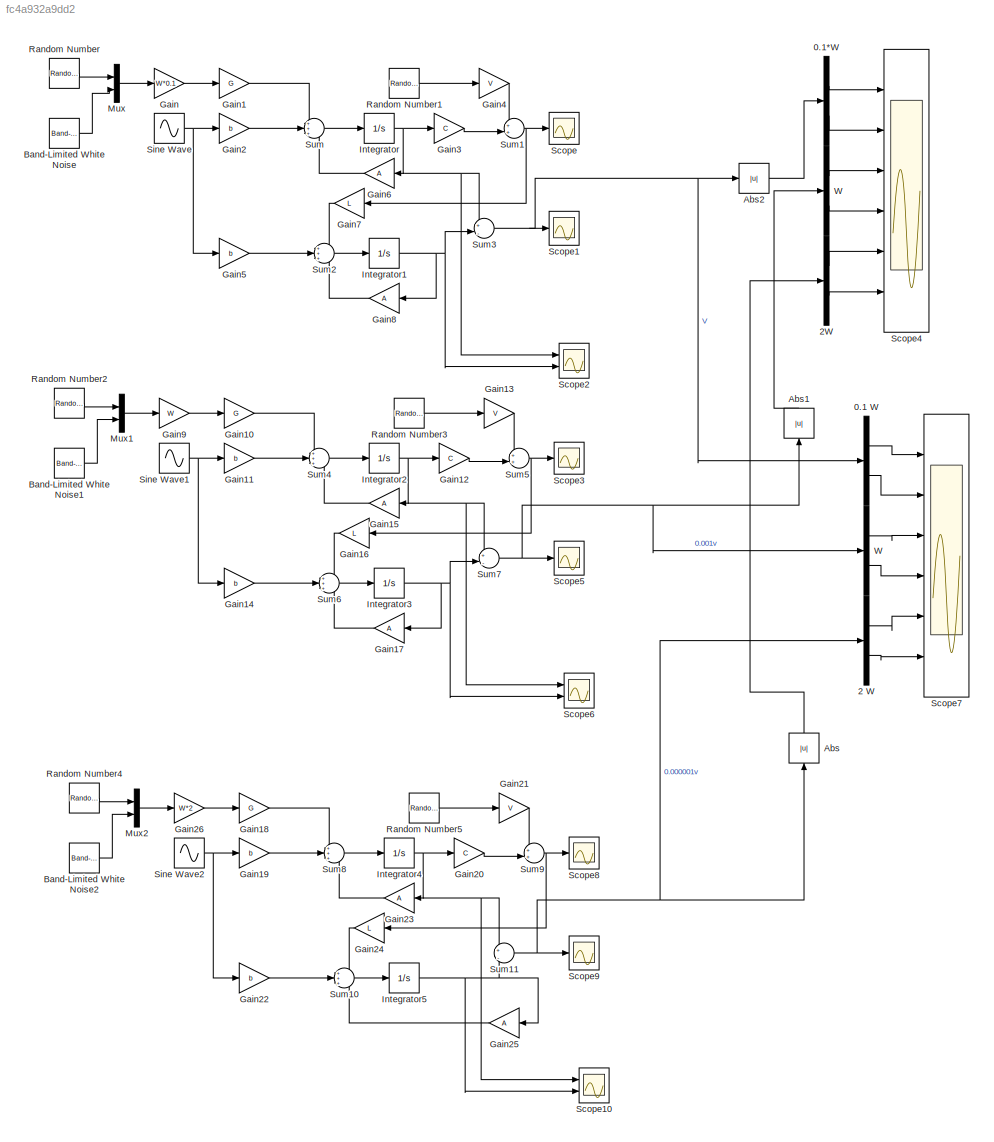
MODEL slx_fc4a932a9dd2
KIND model
CONFIG AbsTol = auto
CONFIG EnableMultiTasking = off
CONFIG FixedStep = auto
CONFIG MaxStep = auto
CONFIG MinStep = auto
CONFIG RelTol = 1e-3
CONFIG SampleTimeConstraint = Unconstrained
CONFIG SolverName = VariableStepAuto
CONFIG StartTime = 0.0
CONFIG StopTime = 10
BLOCK [Demux] 	0.1 W
  Outputs = 2
  Ports = [1, 2]
BLOCK [Demux] 	0.1*W
  Outputs = 2
  Ports = [1, 2]
BLOCK [Demux] 2 W
  NameLocation = right
  Outputs = 2
  Ports = [1, 2]
BLOCK [Demux] 2W
  Outputs = 2
  Ports = [1, 2]
BLOCK [Abs] Abs
  NameLocation = right
  SaturateOnIntegerOverflow = off
BLOCK [Abs] Abs1
  NameLocation = right
  SaturateOnIntegerOverflow = off
BLOCK [Abs] Abs2
  SaturateOnIntegerOverflow = off
BLOCK [Reference] Band-Limited White Noise  REF=simulink/Sources/Band-Limited
White Noise
  Ports = [0, 1]
  SourceBlock = simulink/Sources/Band-Limited\nWhite Noise
  SourceProductBaseCode = SL
  SourceType = Band-Limited White Noise.
BLOCK [Reference] Band-Limited White Noise1  REF=simulink/Sources/Band-Limited
White Noise
  Ports = [0, 1]
  SourceBlock = simulink/Sources/Band-Limited\nWhite Noise
  SourceProductBaseCode = SL
  SourceType = Band-Limited White Noise.
BLOCK [Reference] Band-Limited White Noise2  REF=simulink/Sources/Band-Limited
White Noise
  Ports = [0, 1]
  SourceBlock = simulink/Sources/Band-Limited\nWhite Noise
  SourceProductBaseCode = SL
  SourceType = Band-Limited White Noise.
BLOCK [Gain] Gain
  Gain = W*0.1
  Multiplication = Matrix(K*u)
BLOCK [Gain] Gain1
  Gain = G
  Multiplication = Matrix(K*u)
BLOCK [Gain] Gain10
  Gain = G
  Multiplication = Matrix(K*u)
BLOCK [Gain] Gain11
  Gain = b
  Multiplication = Matrix(K*u)
BLOCK [Gain] Gain12
  Gain = C
  Multiplication = Matrix(K*u)
BLOCK [Gain] Gain13
  Gain = V
  Multiplication = Matrix(K*u)
BLOCK [Gain] Gain14
  Gain = b
  Multiplication = Matrix(K*u)
BLOCK [Gain] Gain15
  Gain = A
  Multiplication = Matrix(K*u)
  NameLocation = top
BLOCK [Gain] Gain16
  Gain = L
  Multiplication = Matrix(K*u)
  NameLocation = top
BLOCK [Gain] Gain17
  Gain = A
  Multiplication = Matrix(K*u)
  NameLocation = top
BLOCK [Gain] Gain18
  Gain = G
  Multiplication = Matrix(K*u)
BLOCK [Gain] Gain19
  Gain = b
  Multiplication = Matrix(K*u)
BLOCK [Gain] Gain2
  Gain = b
  Multiplication = Matrix(K*u)
BLOCK [Gain] Gain20
  Gain = C
  Multiplication = Matrix(K*u)
BLOCK [Gain] Gain21
  Gain = V
  Multiplication = Matrix(K*u)
BLOCK [Gain] Gain22
  Gain = b
  Multiplication = Matrix(K*u)
BLOCK [Gain] Gain23
  Gain = A
  Multiplication = Matrix(K*u)
  NameLocation = top
BLOCK [Gain] Gain24
  Gain = L
  Multiplication = Matrix(K*u)
  NameLocation = top
BLOCK [Gain] Gain25
  Gain = A
  Multiplication = Matrix(K*u)
  NameLocation = top
BLOCK [Gain] Gain26
  Gain = W*2
  Multiplication = Matrix(K*u)
BLOCK [Gain] Gain3
  Gain = C
  Multiplication = Matrix(K*u)
BLOCK [Gain] Gain4
  Gain = V
  Multiplication = Matrix(K*u)
BLOCK [Gain] Gain5
  Gain = b
  Multiplication = Matrix(K*u)
BLOCK [Gain] Gain6
  Gain = A
  Multiplication = Matrix(K*u)
  NameLocation = top
BLOCK [Gain] Gain7
  Gain = L
  Multiplication = Matrix(K*u)
  NameLocation = top
BLOCK [Gain] Gain8
  Gain = A
  Multiplication = Matrix(K*u)
  NameLocation = top
BLOCK [Gain] Gain9
  Gain = W
  Multiplication = Matrix(K*u)
BLOCK [Integrator] Integrator
  InitialCondition = [1;0]
  Ports = [1, 1]
BLOCK [Integrator] Integrator1
  InitialCondition = [0;0]
  Ports = [1, 1]
BLOCK [Integrator] Integrator2
  InitialCondition = [1;0]
  Ports = [1, 1]
BLOCK [Integrator] Integrator3
  InitialCondition = [0;0]
  Ports = [1, 1]
BLOCK [Integrator] Integrator4
  InitialCondition = [1;0]
  Ports = [1, 1]
BLOCK [Integrator] Integrator5
  InitialCondition = [0;0]
  Ports = [1, 1]
BLOCK [Mux] Mux
  DisplayOption = bar
  Inputs = 2
  Ports = [2, 1]
BLOCK [Mux] Mux1
  DisplayOption = bar
  Inputs = 2
  Ports = [2, 1]
BLOCK [Mux] Mux2
  DisplayOption = bar
  Inputs = 2
  Ports = [2, 1]
BLOCK [RandomNumber] Random Number
  SampleTime = 0.1
BLOCK [RandomNumber] Random Number1
  SampleTime = 0.1
BLOCK [RandomNumber] Random Number2
  SampleTime = 0.1
BLOCK [RandomNumber] Random Number3
  SampleTime = 0.1
BLOCK [RandomNumber] Random Number4
  SampleTime = 0.1
BLOCK [RandomNumber] Random Number5
  SampleTime = 0.1
BLOCK [Scope] Scope
  Floating = off
  NumInputPorts = 1
  Ports = [1]
  ScopeSpecificationString = Simulink.scopes.TimeScopeBlockCfg('CurrentConfiguration', extmgr.ConfigurationSet(extmgr.Configuration('Core','General UI',true),extmgr.Configuration('Core','Source UI',true),extmgr.Configuration('Sources','WiredSimulink',true),extmgr.Configuration('Visuals','Time Domain',true,'SerializedDisplays',{struct('MinYLimReal','-3.75698','MaxYLimReal','3.24648','YLabelReal','','MinYLimMag','0.00000','MaxY...<+1324ch>
BLOCK [Scope] Scope1
  Floating = off
  NumInputPorts = 1
  Ports = [1]
  ScopeSpecificationString = Simulink.scopes.TimeScopeBlockCfg('CurrentConfiguration', extmgr.ConfigurationSet(extmgr.Configuration('Core','General UI',true,'FigureColor',[1 1 1]),extmgr.Configuration('Core','Source UI',true),extmgr.Configuration('Sources','WiredSimulink',true,'DataLoggingVariableName','ScopeData1'),extmgr.Configuration('Visuals','Time Domain',true,'SerializedDisplays',{struct('MinYLimReal','-4.37644','MaxYLi...<+1590ch>
BLOCK [Scope] Scope10
  Floating = off
  NumInputPorts = 2
  Ports = [2]
  ScopeSpecificationString = Simulink.scopes.TimeScopeBlockCfg('CurrentConfiguration', extmgr.ConfigurationSet(extmgr.Configuration('Core','General UI',true,'FigureColor',[1 1 1]),extmgr.Configuration('Core','Source UI',true),extmgr.Configuration('Sources','WiredSimulink',true,'DataLoggingVariableName','ScopeData6'),extmgr.Configuration('Visuals','Time Domain',true,'SerializedDisplays',{struct('MinYLimReal','-35.42371','MaxYL...<+1723ch>
BLOCK [Scope] Scope2
  Floating = off
  NumInputPorts = 2
  Ports = [2]
  ScopeSpecificationString = Simulink.scopes.TimeScopeBlockCfg('CurrentConfiguration', extmgr.ConfigurationSet(extmgr.Configuration('Core','General UI',true,'FigureColor',[1 1 1]),extmgr.Configuration('Core','Source UI',true),extmgr.Configuration('Sources','WiredSimulink',true,'DataLoggingVariableName','ScopeData1'),extmgr.Configuration('Visuals','Time Domain',true,'SerializedDisplays',{struct('MinYLimReal','-5.13299','MaxYLi...<+1717ch>
BLOCK [Scope] Scope3
  Floating = off
  NumInputPorts = 1
  Ports = [1]
  ScopeSpecificationString = Simulink.scopes.TimeScopeBlockCfg('CurrentConfiguration', extmgr.ConfigurationSet(extmgr.Configuration('Core','General UI',true),extmgr.Configuration('Core','Source UI',true),extmgr.Configuration('Sources','WiredSimulink',true,'DataLoggingVariableName','ScopeData2'),extmgr.Configuration('Visuals','Time Domain',true,'SerializedDisplays',{struct('MinYLimReal','-11.13726','MaxYLimReal','10.60556','YL...<+1369ch>
BLOCK [Scope] Scope4
  Floating = off
  NumInputPorts = 6
  Ports = [6]
  ScopeSpecificationString = Simulink.scopes.TimeScopeBlockCfg('CurrentConfiguration', extmgr.ConfigurationSet(extmgr.Configuration('Core','General UI',true,'FigureColor',[1 1 1]),extmgr.Configuration('Core','Source UI',true),extmgr.Configuration('Sources','WiredSimulink',true,'DataLoggingVariableName','ScopeData3'),extmgr.Configuration('Visuals','Time Domain',true,'SerializedDisplays',{struct('MinYLimReal','-5.01544','MaxYLi...<+2389ch>
BLOCK [Scope] Scope5
  Floating = off
  NumInputPorts = 1
  Ports = [1]
  ScopeSpecificationString = Simulink.scopes.TimeScopeBlockCfg('CurrentConfiguration', extmgr.ConfigurationSet(extmgr.Configuration('Core','General UI',true,'FigureColor',[1 1 1]),extmgr.Configuration('Core','Source UI',true),extmgr.Configuration('Sources','WiredSimulink',true,'DataLoggingVariableName','ScopeData4'),extmgr.Configuration('Visuals','Time Domain',true,'SerializedDisplays',{struct('MinYLimReal','-31.06163','MaxYL...<+1596ch>
BLOCK [Scope] Scope6
  Floating = off
  NumInputPorts = 2
  Ports = [2]
  ScopeSpecificationString = Simulink.scopes.TimeScopeBlockCfg('CurrentConfiguration', extmgr.ConfigurationSet(extmgr.Configuration('Core','General UI',true,'FigureColor',[1 1 1]),extmgr.Configuration('Core','Source UI',true),extmgr.Configuration('Sources','WiredSimulink',true,'DataLoggingVariableName','ScopeData5'),extmgr.Configuration('Visuals','Time Domain',true,'SerializedDisplays',{struct('MinYLimReal','-35.42371','MaxYL...<+1723ch>
BLOCK [Scope] Scope7
  Floating = off
  NumInputPorts = 6
  Ports = [6]
  ScopeSpecificationString = Simulink.scopes.TimeScopeBlockCfg('CurrentConfiguration', extmgr.ConfigurationSet(extmgr.Configuration('Core','General UI',true,'FigureColor',[1 1 1]),extmgr.Configuration('Core','Source UI',true),extmgr.Configuration('Sources','WiredSimulink',true,'DataLoggingVariableName','ScopeData7'),extmgr.Configuration('Visuals','Time Domain',true,'SerializedDisplays',{struct('MinYLimReal','-41.73829','MaxYL...<+2408ch>
BLOCK [Scope] Scope8
  Floating = off
  NumInputPorts = 1
  Ports = [1]
  ScopeSpecificationString = Simulink.scopes.TimeScopeBlockCfg('CurrentConfiguration', extmgr.ConfigurationSet(extmgr.Configuration('Core','General UI',true),extmgr.Configuration('Core','Source UI',true),extmgr.Configuration('Sources','WiredSimulink',true,'DataLoggingVariableName','ScopeData8'),extmgr.Configuration('Visuals','Time Domain',true,'SerializedDisplays',{struct('MinYLimReal','-11.13726','MaxYLimReal','10.60556','YL...<+1369ch>
BLOCK [Scope] Scope9
  Floating = off
  NumInputPorts = 1
  Ports = [1]
  ScopeSpecificationString = Simulink.scopes.TimeScopeBlockCfg('CurrentConfiguration', extmgr.ConfigurationSet(extmgr.Configuration('Core','General UI',true,'FigureColor',[1 1 1]),extmgr.Configuration('Core','Source UI',true),extmgr.Configuration('Sources','WiredSimulink',true,'DataLoggingVariableName','ScopeData9'),extmgr.Configuration('Visuals','Time Domain',true,'SerializedDisplays',{struct('MinYLimReal','-31.06163','MaxYL...<+1596ch>
BLOCK [Sin] Sine Wave
  Ports = [0, 1]
  SampleTime = 0
BLOCK [Sin] Sine Wave1
  Ports = [0, 1]
  SampleTime = 0
BLOCK [Sin] Sine Wave2
  Ports = [0, 1]
  SampleTime = 0
BLOCK [Sum] Sum
  Inputs = +++
  Ports = [3, 1]
BLOCK [Sum] Sum1
  Inputs = ++|
  Ports = [2, 1]
BLOCK [Sum] Sum10
  Inputs = +++
  Ports = [3, 1]
BLOCK [Sum] Sum11
  Inputs = +|-
  Ports = [2, 1]
BLOCK [Sum] Sum2
  Inputs = +++
  Ports = [3, 1]
BLOCK [Sum] Sum3
  Inputs = +|-
  Ports = [2, 1]
BLOCK [Sum] Sum4
  Inputs = +++
  Ports = [3, 1]
BLOCK [Sum] Sum5
  Inputs = ++|
  Ports = [2, 1]
BLOCK [Sum] Sum6
  Inputs = +++
  Ports = [3, 1]
BLOCK [Sum] Sum7
  Inputs = +|-
  Ports = [2, 1]
BLOCK [Sum] Sum8
  Inputs = +++
  Ports = [3, 1]
BLOCK [Sum] Sum9
  Inputs = ++|
  Ports = [2, 1]
BLOCK [Demux] W
  Outputs = 2
  Ports = [1, 2]
BLOCK [Demux] W   
  Outputs = 2
  Ports = [1, 2]
LINE 	0.1 W:1 -> Scope7:1
LINE 	0.1 W:2 -> Scope7:2
LINE 	0.1*W:1 -> Scope4:1
LINE 	0.1*W:2 -> Scope4:2
LINE 2 W:1 -> Scope7:5
LINE 2 W:2 -> Scope7:6
LINE 2W:1 -> Scope4:5
LINE 2W:2 -> Scope4:6
LINE Abs1:1 -> W:1
LINE Abs2:1 -> 	0.1*W:1
LINE Abs:1 -> 2W:1
LINE Band-Limited White Noise1:1 -> Mux1:2
LINE Band-Limited White Noise2:1 -> Mux2:2
LINE Band-Limited White Noise:1 -> Mux:2
LINE Gain10:1 -> Sum4:1
LINE Gain11:1 -> Sum4:2
LINE Gain12:1 -> Sum5:2
LINE Gain13:1 -> Sum5:1
LINE Gain14:1 -> Sum6:2
LINE Gain15:1 -> Sum4:3
LINE Gain16:1 -> Sum6:1
LINE Gain17:1 -> Sum6:3
LINE Gain18:1 -> Sum8:1
LINE Gain19:1 -> Sum8:2
LINE Gain1:1 -> Sum:1
LINE Gain20:1 -> Sum9:2
LINE Gain21:1 -> Sum9:1
LINE Gain22:1 -> Sum10:2
LINE Gain23:1 -> Sum8:3
LINE Gain24:1 -> Sum10:1
LINE Gain25:1 -> Sum10:3
LINE Gain26:1 -> Gain18:1
LINE Gain2:1 -> Sum:2
LINE Gain3:1 -> Sum1:2
LINE Gain4:1 -> Sum1:1
LINE Gain5:1 -> Sum2:2
LINE Gain6:1 -> Sum:3
LINE Gain7:1 -> Sum2:1
LINE Gain8:1 -> Sum2:3
LINE Gain9:1 -> Gain10:1
LINE Gain:1 -> Gain1:1
NET Integrator1:1 -> Gain8:1, Scope2:2, Sum3:2
NET Integrator2:1 -> Gain12:1, Gain15:1, Scope6:1, Sum7:1
NET Integrator3:1 -> Gain17:1, Scope6:2, Sum7:2
NET Integrator4:1 -> Gain20:1, Gain23:1, Scope10:1, Sum11:1
NET Integrator5:1 -> Gain25:1, Scope10:2, Sum11:2
NET Integrator:1 -> Gain3:1, Gain6:1, Scope2:1, Sum3:1
LINE Mux1:1 -> Gain9:1
LINE Mux2:1 -> Gain26:1
LINE Mux:1 -> Gain:1
LINE Random Number1:1 -> Gain4:1
LINE Random Number2:1 -> Mux1:1
LINE Random Number3:1 -> Gain13:1
LINE Random Number4:1 -> Mux2:1
LINE Random Number5:1 -> Gain21:1
LINE Random Number:1 -> Mux:1
NET Sine Wave1:1 -> Gain11:1, Gain14:1
NET Sine Wave2:1 -> Gain19:1, Gain22:1
NET Sine Wave:1 -> Gain2:1, Gain5:1
LINE Sum10:1 -> Integrator5:1
NET Sum11:1 -> 2 W:1, Abs:1, Scope9:1
NET Sum1:1 -> Gain7:1, Scope:1
LINE Sum2:1 -> Integrator1:1
NET Sum3:1 -> 	0.1 W:1, Abs2:1, Scope1:1
LINE Sum4:1 -> Integrator2:1
NET Sum5:1 -> Gain16:1, Scope3:1
LINE Sum6:1 -> Integrator3:1
NET Sum7:1 -> Abs1:1, Scope5:1, W   :1
LINE Sum8:1 -> Integrator4:1
NET Sum9:1 -> Gain24:1, Scope8:1
LINE Sum:1 -> Integrator:1
LINE W   :1 -> Scope7:3
LINE W   :2 -> Scope7:4
LINE W:1 -> Scope4:3
LINE W:2 -> Scope4:4
note: NET lines group one-source signal fan-out (src -> all destinations, sorted); 1:1 wires keep LINE
